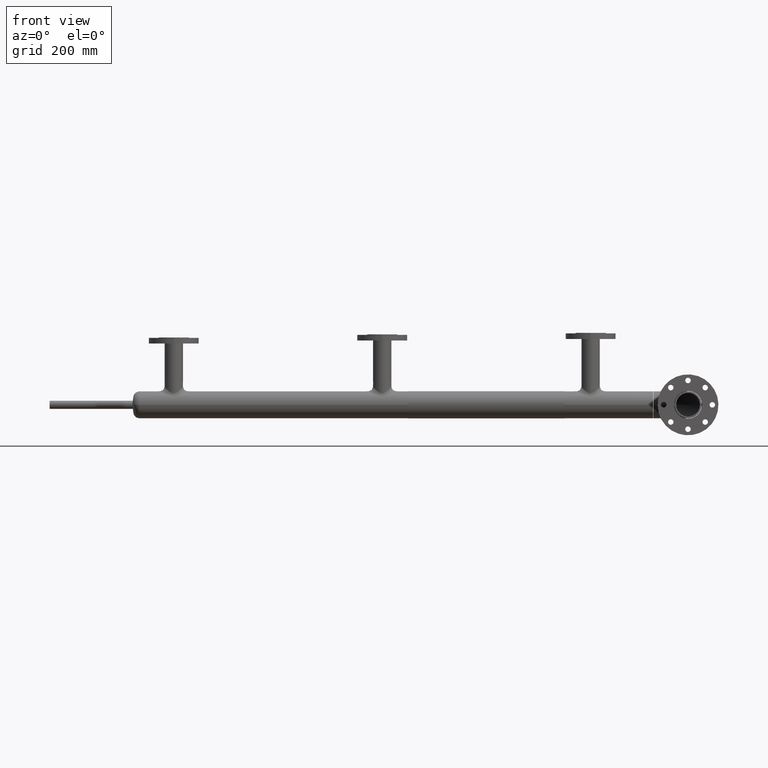
[diagram: clean part render]
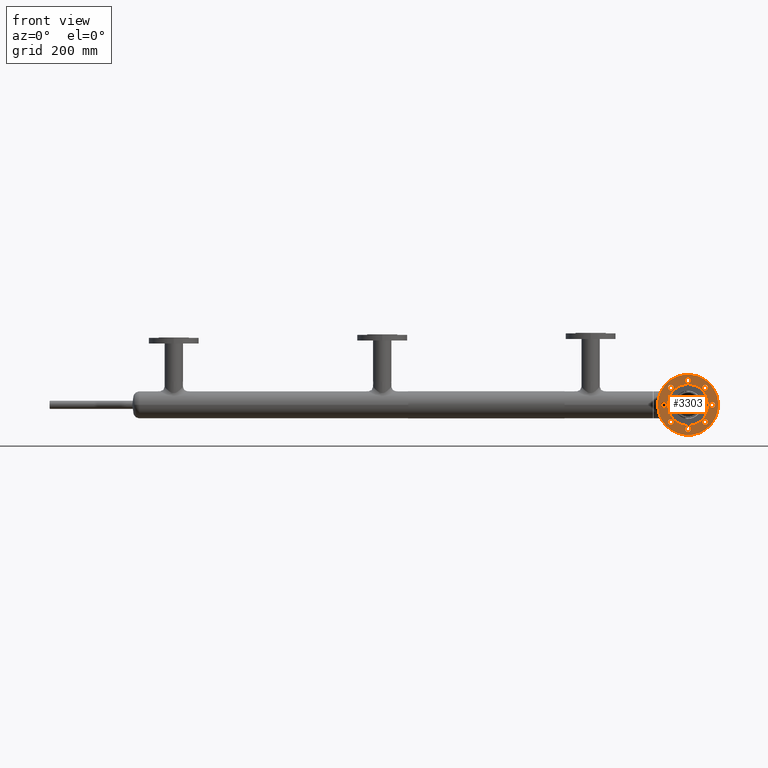
[diagram: same view with one face highlighted and labeled with its STEP entity id]
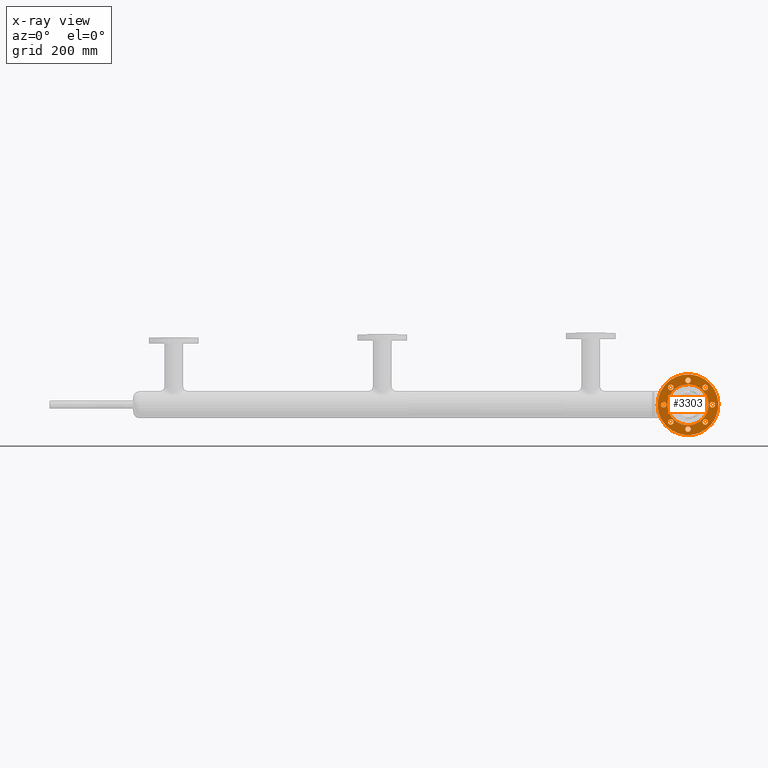
[diagram: x-ray of the same camera — body ghosted, the highlighted face saturated]
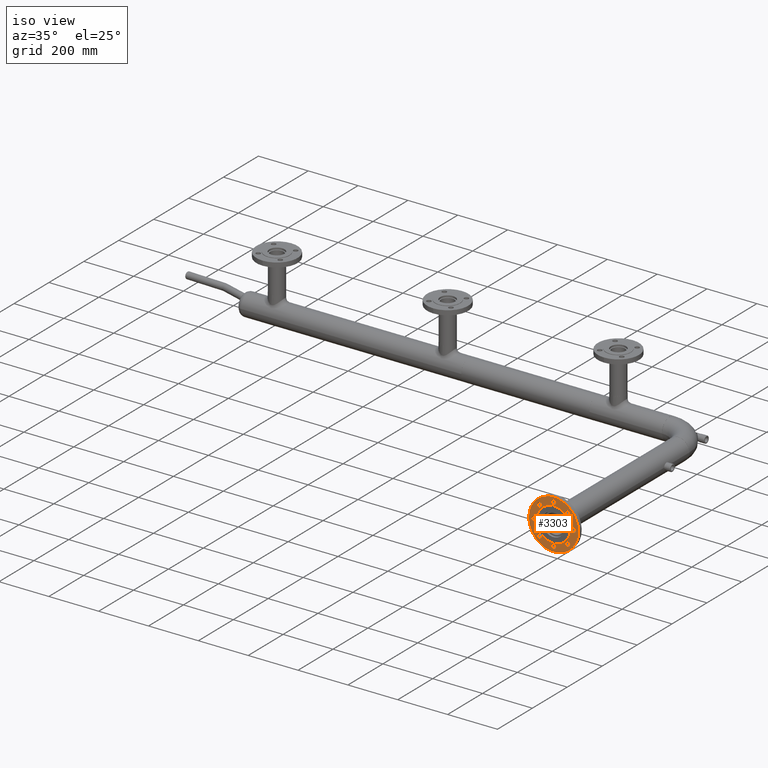
[diagram: same view with one face highlighted and labeled with its STEP entity id]
A machine part, front view. The second image highlights one B-rep face of the part: STEP entity #3303.
The next image is the same camera in x-ray: the body ghosted, the highlighted face saturated — about 0% of this face is hidden behind the body in this view.
A second angle (iso view) of the same face is appended — the face is thin or edge-on in the first view.
In plain terms, the highlighted planar face has unit normal (-0, 1, 0).
Its self-contained STEP definition (entity closure, byte-faithful):
#24 = ORIENTED_EDGE ( 'NONE', *, *, #4610, .F. ) ;
#38 = EDGE_CURVE ( 'NONE', #268, #5910, #3134, .T. ) ;
#74 = DIRECTION ( 'NONE',  ( -3.451266460341933655E-31, -6.557406274649673244E-30, 1.000000000000000000 ) ) ;
#146 = DIRECTION ( 'NONE',  ( -3.451266460341933655E-31, -6.557406274649673244E-30, 1.000000000000000000 ) ) ;
#147 = ORIENTED_EDGE ( 'NONE', *, *, #3322, .F. ) ;
#201 = VERTEX_POINT ( 'NONE', #4372 ) ;
#247 = AXIS2_PLACEMENT_3D ( 'NONE', #3880, #5918, #1321 ) ;
#268 = VERTEX_POINT ( 'NONE', #6516 ) ;
#313 = DIRECTION ( 'NONE',  ( -3.451266460341933655E-31, -6.557406274649673244E-30, 1.000000000000000000 ) ) ;
#336 = CIRCLE ( 'NONE', #2927, 9.000000000000012434 ) ;
#444 = CIRCLE ( 'NONE', #4218, 9.000000000000007105 ) ;
#467 = CIRCLE ( 'NONE', #1664, 9.000000000000007105 ) ;
#476 = DIRECTION ( 'NONE',  ( 1.000000000000000000, 0.000000000000000000, 0.000000000000000000 ) ) ;
#497 = CIRCLE ( 'NONE', #923, 9.000000000000007105 ) ;
#505 = ORIENTED_EDGE ( 'NONE', *, *, #5292, .F. ) ;
#586 = DIRECTION ( 'NONE',  ( -3.451266460341933655E-31, -6.557406274649673244E-30, 1.000000000000000000 ) ) ;
#608 = CARTESIAN_POINT ( 'NONE',  ( 0.000000000000000000, 0.000000000000000000, -2.000000000000001776 ) ) ;
#613 = CARTESIAN_POINT ( 'NONE',  ( 80.27432363158162332, 24.25071355852911026, -2.000000000000001776 ) ) ;
#618 = CIRCLE ( 'NONE', #1918, 9.000000000000017764 ) ;
#649 = FACE_BOUND ( 'NONE', #3359, .T. ) ;
#733 = CARTESIAN_POINT ( 'NONE',  ( -80.27432363158180806, -24.25071355852850985, -2.000000000000001776 ) ) ;
#766 = VERTEX_POINT ( 'NONE', #2296 ) ;
#769 = AXIS2_PLACEMENT_3D ( 'NONE', #3648, #3577, #476 ) ;
#773 = DIRECTION ( 'NONE',  ( -3.451266460341933655E-31, -6.557406274649673244E-30, 1.000000000000000000 ) ) ;
#781 = CIRCLE ( 'NONE', #247, 9.000000000000007105 ) ;
#783 = CARTESIAN_POINT ( 'NONE',  ( 73.91036260090261578, 30.61467458920796858, -2.000000000000001776 ) ) ;
#829 = CIRCLE ( 'NONE', #6086, 9.000000000000014211 ) ;
#856 = VERTEX_POINT ( 'NONE', #1964 ) ;
#889 = EDGE_LOOP ( 'NONE', ( #4931, #24 ) ) ;
#923 = AXIS2_PLACEMENT_3D ( 'NONE', #1477, #3070, #6113 ) ;
#941 = DIRECTION ( 'NONE',  ( -3.451266460341933655E-31, -6.557406274649673244E-30, 1.000000000000000000 ) ) ;
#966 = EDGE_LOOP ( 'NONE', ( #5062, #1172 ) ) ;
#1017 = CARTESIAN_POINT ( 'NONE',  ( 24.25071355852891841, -80.27432363158187911, -2.000000000000001776 ) ) ;
#1032 = EDGE_CURVE ( 'NONE', #5647, #6437, #4953, .T. ) ;
#1083 = EDGE_CURVE ( 'NONE', #5703, #2311, #336, .T. ) ;
#1106 = CARTESIAN_POINT ( 'NONE',  ( -24.25071355852832156, 80.27432363158183648, -2.000000000000001776 ) ) ;
#1108 = CARTESIAN_POINT ( 'NONE',  ( -39.61467458920725448, -73.91036260090299947, -2.000000000000001776 ) ) ;
#1116 = EDGE_LOOP ( 'NONE', ( #6610, #3066 ) ) ;
#1122 = DIRECTION ( 'NONE',  ( 1.000000000000000000, 0.000000000000000000, 0.000000000000000000 ) ) ;
#1135 = DIRECTION ( 'NONE',  ( 0.7071067811865562325, -0.7071067811865389130, 0.000000000000000000 ) ) ;
#1157 = AXIS2_PLACEMENT_3D ( 'NONE', #3010, #3442, #1869 ) ;
#1172 = ORIENTED_EDGE ( 'NONE', *, *, #4891, .F. ) ;
#1221 = PLANE ( 'NONE',  #6417 ) ;
#1238 = ORIENTED_EDGE ( 'NONE', *, *, #38, .F. ) ;
#1280 = DIRECTION ( 'NONE',  ( -3.451266460341933655E-31, -6.557406274649673244E-30, 1.000000000000000000 ) ) ;
#1285 = DIRECTION ( 'NONE',  ( -0.7071067811865513475, 0.7071067811865436870, 0.000000000000000000 ) ) ;
#1321 = DIRECTION ( 'NONE',  ( -3.083952846180988111E-15, 1.000000000000000000, 0.000000000000000000 ) ) ;
#1356 = DIRECTION ( 'NONE',  ( -3.451266460341933655E-31, -6.557406274649673244E-30, 1.000000000000000000 ) ) ;
#1401 = VERTEX_POINT ( 'NONE', #4439 ) ;
#1477 = CARTESIAN_POINT ( 'NONE',  ( 73.91036260090334054, -30.61467458920674645, -2.000000000000001776 ) ) ;
#1507 = ORIENTED_EDGE ( 'NONE', *, *, #1870, .F. ) ;
#1628 = DIRECTION ( 'NONE',  ( -3.451266460341933655E-31, -6.557406274649673244E-30, 1.000000000000000000 ) ) ;
#1658 = EDGE_CURVE ( 'NONE', #6437, #5647, #4724, .T. ) ;
#1664 = AXIS2_PLACEMENT_3D ( 'NONE', #2787, #586, #2148 ) ;
#1690 = CARTESIAN_POINT ( 'NONE',  ( -73.91036260090297105, 21.61467458920706974, -2.000000000000001776 ) ) ;
#1705 = ORIENTED_EDGE ( 'NONE', *, *, #5453, .F. ) ;
#1735 = FACE_BOUND ( 'NONE', #3180, .T. ) ;
#1837 = CARTESIAN_POINT ( 'NONE',  ( -73.91036260090282894, -30.61467458920741436, -2.000000000000001776 ) ) ;
#1866 = AXIS2_PLACEMENT_3D ( 'NONE', #783, #313, #5954 ) ;
#1869 = DIRECTION ( 'NONE',  ( 1.000000000000000000, 0.000000000000000000, 0.000000000000000000 ) ) ;
#1870 = EDGE_CURVE ( 'NONE', #5738, #2135, #829, .T. ) ;
#1873 = CARTESIAN_POINT ( 'NONE',  ( -21.61467458920723672, -73.91036260090299947, -2.000000000000001776 ) ) ;
#1896 = DIRECTION ( 'NONE',  ( 1.000000000000000000, 0.000000000000000000, 0.000000000000000000 ) ) ;
#1918 = AXIS2_PLACEMENT_3D ( 'NONE', #1837, #941, #3979 ) ;
#1964 = CARTESIAN_POINT ( 'NONE',  ( 39.61467458920731133, 73.91036260090299947, -2.000000000000001776 ) ) ;
#2045 = DIRECTION ( 'NONE',  ( 0.7071067811865463515, 0.7071067811865486830, 0.000000000000000000 ) ) ;
#2062 = CARTESIAN_POINT ( 'NONE',  ( 21.61467458920729001, 73.91036260090299947, -2.000000000000001776 ) ) ;
#2079 = CARTESIAN_POINT ( 'NONE',  ( -100.0000000000000000, 1.224646799147358108E-14, -2.000000000000001776 ) ) ;
#2103 = CARTESIAN_POINT ( 'NONE',  ( 30.61467458920780160, -73.91036260090288579, -2.000000000000001776 ) ) ;
#2135 = VERTEX_POINT ( 'NONE', #5437 ) ;
#2137 = DIRECTION ( 'NONE',  ( -0.7071067811865416886, -0.7071067811865532349, 0.000000000000000000 ) ) ;
#2139 = CARTESIAN_POINT ( 'NONE',  ( 30.61467458920730422, 73.91036260090299947, -2.000000000000001776 ) ) ;
#2148 = DIRECTION ( 'NONE',  ( 1.079383496163345760E-14, -1.000000000000000000, 0.000000000000000000 ) ) ;
#2216 = CARTESIAN_POINT ( 'NONE',  ( -73.91036260090299947, 30.61467458920708040, -2.000000000000001776 ) ) ;
#2217 = ORIENTED_EDGE ( 'NONE', *, *, #2525, .F. ) ;
#2241 = AXIS2_PLACEMENT_3D ( 'NONE', #2635, #5273, #5241 ) ;
#2249 = FACE_BOUND ( 'NONE', #889, .T. ) ;
#2280 = DIRECTION ( 'NONE',  ( -4.437342591868191405E-31, 6.557406274649674645E-30, -1.000000000000000000 ) ) ;
#2296 = CARTESIAN_POINT ( 'NONE',  ( -73.91036260090302790, 39.61467458920709106, -2.000000000000001776 ) ) ;
#2311 = VERTEX_POINT ( 'NONE', #3695 ) ;
#2354 = CIRCLE ( 'NONE', #1157, 67.50000000000000000 ) ;
#2424 = EDGE_CURVE ( 'NONE', #3418, #5242, #3680, .T. ) ;
#2525 = EDGE_CURVE ( 'NONE', #856, #6255, #6463, .T. ) ;
#2559 = AXIS2_PLACEMENT_3D ( 'NONE', #3813, #773, #1285 ) ;
#2635 = CARTESIAN_POINT ( 'NONE',  ( 30.61467458920780160, -73.91036260090288579, -2.000000000000001776 ) ) ;
#2747 = FACE_BOUND ( 'NONE', #6474, .T. ) ;
#2787 = CARTESIAN_POINT ( 'NONE',  ( 73.91036260090334054, -30.61467458920674645, -2.000000000000001776 ) ) ;
#2927 = AXIS2_PLACEMENT_3D ( 'NONE', #2103, #4146, #2137 ) ;
#2956 = VERTEX_POINT ( 'NONE', #1690 ) ;
#3010 = CARTESIAN_POINT ( 'NONE',  ( 0.000000000000000000, 0.000000000000000000, -2.000000000000001776 ) ) ;
#3024 = AXIS2_PLACEMENT_3D ( 'NONE', #608, #1280, #5345 ) ;
#3060 = AXIS2_PLACEMENT_3D ( 'NONE', #5728, #74, #1122 ) ;
#3066 = ORIENTED_EDGE ( 'NONE', *, *, #3815, .T. ) ;
#3070 = DIRECTION ( 'NONE',  ( -3.451266460341933655E-31, -6.557406274649673244E-30, 1.000000000000000000 ) ) ;
#3134 = CIRCLE ( 'NONE', #3024, 67.50000000000000000 ) ;
#3180 = EDGE_LOOP ( 'NONE', ( #2217, #4739 ) ) ;
#3200 = CIRCLE ( 'NONE', #2559, 9.000000000000017764 ) ;
#3284 = CARTESIAN_POINT ( 'NONE',  ( 5.551115123125782702E-14, 67.50000000000000000, -2.000000000000001776 ) ) ;
#3303 = ADVANCED_FACE ( 'NONE', ( #5757, #5257, #649, #2747, #5294, #2249, #4284, #1735, #3784, #5824 ), #1221, .F. ) ;
#3322 = EDGE_CURVE ( 'NONE', #6585, #4465, #618, .T. ) ;
#3326 = ORIENTED_EDGE ( 'NONE', *, *, #4361, .F. ) ;
#3330 = EDGE_CURVE ( 'NONE', #5910, #268, #2354, .T. ) ;
#3359 = EDGE_LOOP ( 'NONE', ( #147, #3326 ) ) ;
#3418 = VERTEX_POINT ( 'NONE', #4954 ) ;
#3442 = DIRECTION ( 'NONE',  ( -3.451266460341933655E-31, -6.557406274649673244E-30, 1.000000000000000000 ) ) ;
#3474 = CARTESIAN_POINT ( 'NONE',  ( 30.61467458920730422, 73.91036260090299947, -2.000000000000001776 ) ) ;
#3577 = DIRECTION ( 'NONE',  ( -3.451266460341933655E-31, -6.557406274649673244E-30, 1.000000000000000000 ) ) ;
#3583 = AXIS2_PLACEMENT_3D ( 'NONE', #2139, #1628, #4186 ) ;
#3648 = CARTESIAN_POINT ( 'NONE',  ( 0.000000000000000000, 0.000000000000000000, -2.000000000000001776 ) ) ;
#3680 = CIRCLE ( 'NONE', #769, 100.0000000000000000 ) ;
#3695 = CARTESIAN_POINT ( 'NONE',  ( 36.97863561988674519, -67.54640157022396352, -2.000000000000001776 ) ) ;
#3702 = CARTESIAN_POINT ( 'NONE',  ( 73.91036260090261578, 30.61467458920796858, -2.000000000000001776 ) ) ;
#3764 = EDGE_CURVE ( 'NONE', #5129, #201, #467, .T. ) ;
#3784 = FACE_BOUND ( 'NONE', #6029, .T. ) ;
#3801 = DIRECTION ( 'NONE',  ( -1.000000000000000000, 0.000000000000000000, 0.000000000000000000 ) ) ;
#3813 = CARTESIAN_POINT ( 'NONE',  ( -73.91036260090282894, -30.61467458920741436, -2.000000000000001776 ) ) ;
#3815 = EDGE_CURVE ( 'NONE', #5242, #3418, #5080, .T. ) ;
#3880 = CARTESIAN_POINT ( 'NONE',  ( -73.91036260090299947, 30.61467458920708040, -2.000000000000001776 ) ) ;
#3979 = DIRECTION ( 'NONE',  ( -0.7071067811865513475, 0.7071067811865436870, 0.000000000000000000 ) ) ;
#3995 = AXIS2_PLACEMENT_3D ( 'NONE', #4589, #6634, #2045 ) ;
#4068 = CARTESIAN_POINT ( 'NONE',  ( -30.61467458920724738, -73.91036260090299947, -2.000000000000001776 ) ) ;
#4102 = AXIS2_PLACEMENT_3D ( 'NONE', #5409, #4808, #5443 ) ;
#4146 = DIRECTION ( 'NONE',  ( -3.451266460341933655E-31, -6.557406274649673244E-30, 1.000000000000000000 ) ) ;
#4184 = DIRECTION ( 'NONE',  ( -3.451266460341933655E-31, -6.557406274649673244E-30, 1.000000000000000000 ) ) ;
#4186 = DIRECTION ( 'NONE',  ( 1.000000000000000000, 0.000000000000000000, 0.000000000000000000 ) ) ;
#4213 = CARTESIAN_POINT ( 'NONE',  ( -30.61467458920724738, -73.91036260090299947, -2.000000000000001776 ) ) ;
#4218 = AXIS2_PLACEMENT_3D ( 'NONE', #2216, #146, #5192 ) ;
#4284 = FACE_BOUND ( 'NONE', #4749, .T. ) ;
#4323 = EDGE_CURVE ( 'NONE', #6255, #856, #6478, .T. ) ;
#4354 = ORIENTED_EDGE ( 'NONE', *, *, #5700, .F. ) ;
#4361 = EDGE_CURVE ( 'NONE', #4465, #6585, #3200, .T. ) ;
#4372 = CARTESIAN_POINT ( 'NONE',  ( 73.91036260090324106, -21.61467458920673579, -2.000000000000001776 ) ) ;
#4439 = CARTESIAN_POINT ( 'NONE',  ( -36.97863561988616965, 67.54640157022394931, -2.000000000000001776 ) ) ;
#4465 = VERTEX_POINT ( 'NONE', #5415 ) ;
#4579 = DIRECTION ( 'NONE',  ( -1.000000000000000000, 0.000000000000000000, 0.000000000000000000 ) ) ;
#4589 = CARTESIAN_POINT ( 'NONE',  ( -30.61467458920724738, 73.91036260090288579, -2.000000000000001776 ) ) ;
#4610 = EDGE_CURVE ( 'NONE', #201, #5129, #497, .T. ) ;
#4631 = ORIENTED_EDGE ( 'NONE', *, *, #1658, .F. ) ;
#4636 = CIRCLE ( 'NONE', #4102, 9.000000000000012434 ) ;
#4692 = CIRCLE ( 'NONE', #2241, 9.000000000000012434 ) ;
#4724 = CIRCLE ( 'NONE', #6442, 9.000000000000007105 ) ;
#4732 = EDGE_LOOP ( 'NONE', ( #1705, #5837 ) ) ;
#4739 = ORIENTED_EDGE ( 'NONE', *, *, #4323, .F. ) ;
#4749 = EDGE_LOOP ( 'NONE', ( #1507, #4354 ) ) ;
#4808 = DIRECTION ( 'NONE',  ( -3.451266460341933655E-31, -6.557406274649673244E-30, 1.000000000000000000 ) ) ;
#4891 = EDGE_CURVE ( 'NONE', #2311, #5703, #4692, .T. ) ;
#4924 = VERTEX_POINT ( 'NONE', #1106 ) ;
#4928 = CARTESIAN_POINT ( 'NONE',  ( 73.91036260090342580, -39.61467458920675710, -2.000000000000001776 ) ) ;
#4931 = ORIENTED_EDGE ( 'NONE', *, *, #3764, .F. ) ;
#4953 = CIRCLE ( 'NONE', #6137, 9.000000000000007105 ) ;
#4954 = CARTESIAN_POINT ( 'NONE',  ( 100.0000000000000000, 0.000000000000000000, -2.000000000000001776 ) ) ;
#4976 = DIRECTION ( 'NONE',  ( -1.000000000000000000, 0.000000000000000000, 4.437342591868191405E-31 ) ) ;
#5062 = ORIENTED_EDGE ( 'NONE', *, *, #1083, .F. ) ;
#5080 = CIRCLE ( 'NONE', #3060, 100.0000000000000000 ) ;
#5129 = VERTEX_POINT ( 'NONE', #4928 ) ;
#5192 = DIRECTION ( 'NONE',  ( -3.083952846180988111E-15, 1.000000000000000000, 0.000000000000000000 ) ) ;
#5241 = DIRECTION ( 'NONE',  ( -0.7071067811865416886, -0.7071067811865532349, 0.000000000000000000 ) ) ;
#5242 = VERTEX_POINT ( 'NONE', #2079 ) ;
#5257 = FACE_BOUND ( 'NONE', #4732, .T. ) ;
#5273 = DIRECTION ( 'NONE',  ( -3.451266460341933655E-31, -6.557406274649673244E-30, 1.000000000000000000 ) ) ;
#5292 = EDGE_CURVE ( 'NONE', #1401, #4924, #6364, .T. ) ;
#5294 = FACE_BOUND ( 'NONE', #966, .T. ) ;
#5345 = DIRECTION ( 'NONE',  ( 1.000000000000000000, 0.000000000000000000, 0.000000000000000000 ) ) ;
#5366 = ORIENTED_EDGE ( 'NONE', *, *, #1032, .F. ) ;
#5409 = CARTESIAN_POINT ( 'NONE',  ( -30.61467458920724738, 73.91036260090288579, -2.000000000000001776 ) ) ;
#5415 = CARTESIAN_POINT ( 'NONE',  ( -67.54640157022386404, -36.97863561988631886, -2.000000000000001776 ) ) ;
#5437 = CARTESIAN_POINT ( 'NONE',  ( 67.54640157022356561, 36.97863561988679493, -2.000000000000001776 ) ) ;
#5443 = DIRECTION ( 'NONE',  ( 0.7071067811865463515, 0.7071067811865486830, 0.000000000000000000 ) ) ;
#5453 = EDGE_CURVE ( 'NONE', #766, #2956, #444, .T. ) ;
#5489 = ORIENTED_EDGE ( 'NONE', *, *, #6602, .F. ) ;
#5603 = EDGE_LOOP ( 'NONE', ( #5489, #505 ) ) ;
#5647 = VERTEX_POINT ( 'NONE', #1873 ) ;
#5700 = EDGE_CURVE ( 'NONE', #2135, #5738, #5827, .T. ) ;
#5703 = VERTEX_POINT ( 'NONE', #1017 ) ;
#5728 = CARTESIAN_POINT ( 'NONE',  ( 0.000000000000000000, 0.000000000000000000, -2.000000000000001776 ) ) ;
#5738 = VERTEX_POINT ( 'NONE', #613 ) ;
#5740 = DIRECTION ( 'NONE',  ( -3.451266460341933655E-31, -6.557406274649673244E-30, 1.000000000000000000 ) ) ;
#5757 = FACE_BOUND ( 'NONE', #5603, .T. ) ;
#5824 = FACE_OUTER_BOUND ( 'NONE', #1116, .T. ) ;
#5827 = CIRCLE ( 'NONE', #1866, 9.000000000000014211 ) ;
#5837 = ORIENTED_EDGE ( 'NONE', *, *, #6049, .F. ) ;
#5910 = VERTEX_POINT ( 'NONE', #6456 ) ;
#5918 = DIRECTION ( 'NONE',  ( -3.451266460341933655E-31, -6.557406274649673244E-30, 1.000000000000000000 ) ) ;
#5954 = DIRECTION ( 'NONE',  ( 0.7071067811865562325, -0.7071067811865389130, 0.000000000000000000 ) ) ;
#5973 = ORIENTED_EDGE ( 'NONE', *, *, #3330, .F. ) ;
#6029 = EDGE_LOOP ( 'NONE', ( #5973, #1238 ) ) ;
#6049 = EDGE_CURVE ( 'NONE', #2956, #766, #781, .T. ) ;
#6086 = AXIS2_PLACEMENT_3D ( 'NONE', #3702, #5740, #1135 ) ;
#6112 = DIRECTION ( 'NONE',  ( -3.451266460341933655E-31, -6.557406274649673244E-30, 1.000000000000000000 ) ) ;
#6113 = DIRECTION ( 'NONE',  ( 1.079383496163345760E-14, -1.000000000000000000, 0.000000000000000000 ) ) ;
#6137 = AXIS2_PLACEMENT_3D ( 'NONE', #4213, #4184, #4579 ) ;
#6255 = VERTEX_POINT ( 'NONE', #2062 ) ;
#6363 = AXIS2_PLACEMENT_3D ( 'NONE', #3474, #1356, #1896 ) ;
#6364 = CIRCLE ( 'NONE', #3995, 9.000000000000012434 ) ;
#6417 = AXIS2_PLACEMENT_3D ( 'NONE', #3284, #2280, #4976 ) ;
#6437 = VERTEX_POINT ( 'NONE', #1108 ) ;
#6442 = AXIS2_PLACEMENT_3D ( 'NONE', #4068, #6112, #3801 ) ;
#6456 = CARTESIAN_POINT ( 'NONE',  ( 67.50000000000000000, 0.000000000000000000, -2.000000000000001776 ) ) ;
#6463 = CIRCLE ( 'NONE', #6363, 9.000000000000007105 ) ;
#6474 = EDGE_LOOP ( 'NONE', ( #4631, #5366 ) ) ;
#6478 = CIRCLE ( 'NONE', #3583, 9.000000000000007105 ) ;
#6516 = CARTESIAN_POINT ( 'NONE',  ( -67.50000000000000000, 8.266365894244625656E-15, -2.000000000000001776 ) ) ;
#6585 = VERTEX_POINT ( 'NONE', #733 ) ;
#6602 = EDGE_CURVE ( 'NONE', #4924, #1401, #4636, .T. ) ;
#6610 = ORIENTED_EDGE ( 'NONE', *, *, #2424, .T. ) ;
#6634 = DIRECTION ( 'NONE',  ( -3.451266460341933655E-31, -6.557406274649673244E-30, 1.000000000000000000 ) ) ;